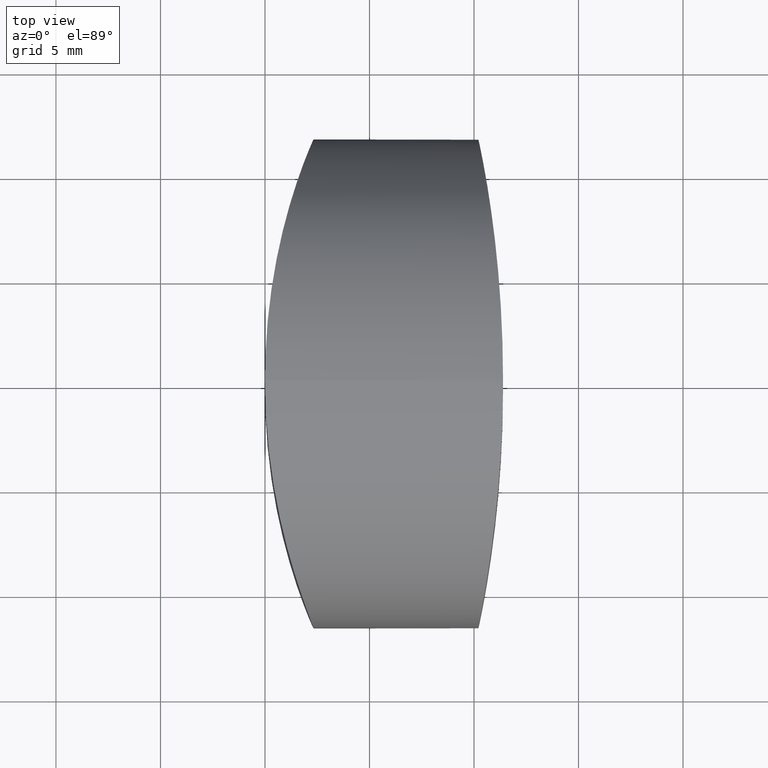
[diagram: clean part render]
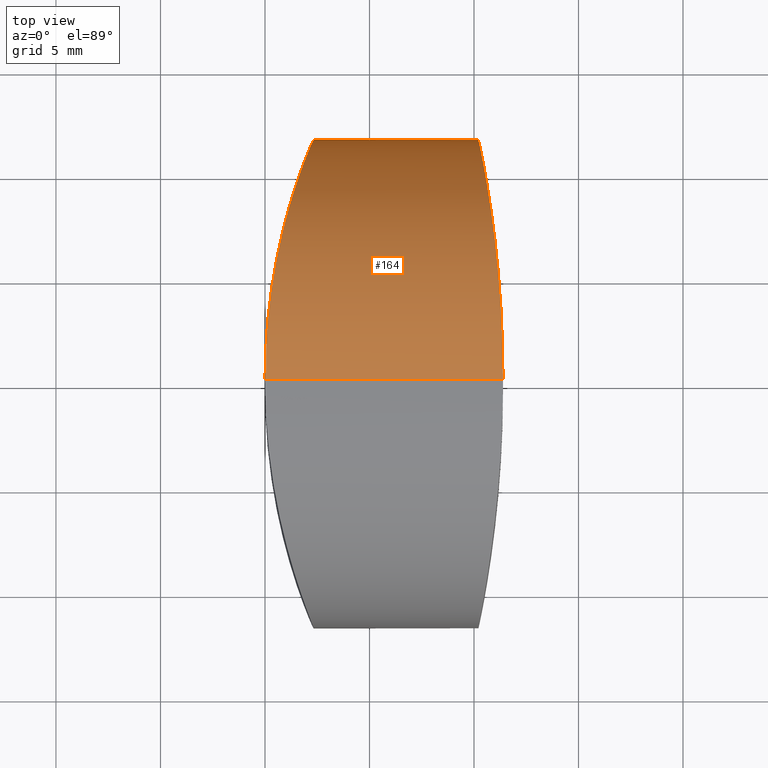
[diagram: same view with one face highlighted and labeled with its STEP entity id]
A machine part, top view. The second image highlights one B-rep face of the part: STEP entity #164.
In plain terms, the highlighted cylindrical surface (partial cylindrical patch) has radius 11.7 mm, axis along (1, -0, -0).
Its self-contained STEP definition (entity closure, byte-faithful):
#2 = CARTESIAN_POINT ( 'NONE',  ( 10.50622504491084186, 10.13271235799219383, 17.56208098822468244 ) ) ;
#4 = CARTESIAN_POINT ( 'NONE',  ( 11.38999999999997570, 0.000000000000000000, 0.000000000000000000 ) ) ;
#5 = LINE ( 'NONE', #199, #33 ) ;
#7 = CARTESIAN_POINT ( 'NONE',  ( 0.1160592993417173535, 2.687889774685310318, 23.09363538782605829 ) ) ;
#8 = CARTESIAN_POINT ( 'NONE',  ( 2.078034471810814576, 11.07726995553003846, 15.48590052942484618 ) ) ;
#9 = CARTESIAN_POINT ( 'NONE',  ( 2.328394357386717850, 11.70000183076872702, 10.91931812079859299 ) ) ;
#10 = CARTESIAN_POINT ( 'NONE',  ( 1.066338910885135549, 8.007149353136878034, 3.160791053814407281 ) ) ;
#11 = CARTESIAN_POINT ( 'NONE',  ( 2.203290676358133471, 11.39374445253838530, 9.012592271372135144 ) ) ;
#13 = VERTEX_POINT ( 'NONE', #52 ) ;
#20 = B_SPLINE_CURVE_WITH_KNOTS ( 'NONE', 3,
 ( #155, #70, #209, #321, #349, #292, #73, #125, #101, #99, #185, #290, #10, #258, #76, #153, #262, #71, #43, #130, #11, #102, #9, #259, #320, #239, #41, #8, #181, #97, #263, #40, #184, #293, #129, #210, #187, #45, #295, #156, #207, #126, #7, #316, #235, #346 ),
 .UNSPECIFIED., .F., .F.,
 ( 4, 2, 2, 2, 2, 2, 2, 2, 2, 2, 2, 2, 2, 2, 2, 2, 2, 2, 2, 2, 2, 2, 4 ),
 ( 0.01845554595554222896, 0.02076242463567595439, 0.02191586397574281711, 0.02306930331580968330, 0.02537618199594341220, 0.02652962133601027839, 0.02768306067607714110, 0.02998993935621087348, 0.03229681803634459891, 0.03345025737641146857, 0.03460369671647833129, 0.03691057539661206366, 0.03921745407674578909, 0.04037089341681265181, 0.04152433275687951453, 0.04383121143701323996, 0.04498465077708009574, 0.04613809011714696540, 0.04844496879728067695, 0.05075184747741440239, 0.05190528681748125817, 0.05305872615754811394, 0.05536560483768183938 ),
 .UNSPECIFIED. ) ;
#24 = CARTESIAN_POINT ( 'NONE',  ( 10.41154747799908442, 10.65660670264508525, 16.54475058334664439 ) ) ;
#30 = CARTESIAN_POINT ( 'NONE',  ( 10.20826313417692965, 11.70001478711865062, 12.47439305725944791 ) ) ;
#33 = VECTOR ( 'NONE', #58, 1000.000000000000000 ) ;
#34 = CARTESIAN_POINT ( 'NONE',  ( 10.33063240543324746, 11.08412693469862376, 7.934383297295575233 ) ) ;
#40 = CARTESIAN_POINT ( 'NONE',  ( 1.516286628019840599, 9.509272122827274742, 18.52705692745586674 ) ) ;
#41 = CARTESIAN_POINT ( 'NONE',  ( 2.166733974316889189, 11.30268615911433372, 14.74766108269162324 ) ) ;
#43 = CARTESIAN_POINT ( 'NONE',  ( 2.076001444509647076, 11.07204335983842469, 7.898962440661879469 ) ) ;
#45 = CARTESIAN_POINT ( 'NONE',  ( 0.5648329074340061595, 5.884546536927040883, 21.84148079144623011 ) ) ;
#49 = VERTEX_POINT ( 'NONE', #345 ) ;
#52 = CARTESIAN_POINT ( 'NONE',  ( 4.449436206481902693E-15, 0.000000000000000000, 23.39999999999999858 ) ) ;
#54 = CARTESIAN_POINT ( 'NONE',  ( 11.33005591743289564, 2.674760554514123090, 0.3033141380260955255 ) ) ;
#58 = DIRECTION ( 'NONE',  ( 1.000000000000000000, -0.000000000000000000, -0.000000000000000000 ) ) ;
#59 = ORIENTED_EDGE ( 'NONE', *, *, #347, .F. ) ;
#61 = CARTESIAN_POINT ( 'NONE',  ( 11.09899048988026138, 5.863226998365520082, 21.85359787293305445 ) ) ;
#63 = CARTESIAN_POINT ( 'NONE',  ( 11.19012191953944679, 4.845000668286446377, 1.043506332682181847 ) ) ;
#69 = CARTESIAN_POINT ( 'NONE',  ( -20.00000000000000000, 1.432836755002403087E-15, 23.39999999999999858 ) ) ;
#70 = CARTESIAN_POINT ( 'NONE',  ( 4.417700336404801841E-15, 0.7806210479886694920, 6.860966872759830774E-16 ) ) ;
#71 = CARTESIAN_POINT ( 'NONE',  ( 2.025629451502845235, 10.94202207652923065, 7.539868181206229814 ) ) ;
#73 = CARTESIAN_POINT ( 'NONE',  ( 0.2812710128058751868, 4.152085810238018482, 0.7548277570260555347 ) ) ;
#74 = VERTEX_POINT ( 'NONE', #238 ) ;
#76 = CARTESIAN_POINT ( 'NONE',  ( 1.442864378714249662, 9.290234166731412557, 4.546816445511939087 ) ) ;
#81 = VERTEX_POINT ( 'NONE', #322 ) ;
#87 = CARTESIAN_POINT ( 'NONE',  ( 11.26871136814262897, 3.783274938317503722, 0.6219328713066870629 ) ) ;
#90 = CARTESIAN_POINT ( 'NONE',  ( 11.24508527239767552, 4.130721833659423581, 22.65325982927251758 ) ) ;
#93 = CARTESIAN_POINT ( 'NONE',  ( 11.24426429742982414, 4.142101250212122387, 0.7511239850717073008 ) ) ;
#94 = CARTESIAN_POINT ( 'NONE',  ( 11.31265727765713258, 3.029920609330154502, 23.00740200318163531 ) ) ;
#97 = CARTESIAN_POINT ( 'NONE',  ( 1.860240585151857529, 10.50411711786879643, 16.90948171108354003 ) ) ;
#98 = FACE_OUTER_BOUND ( 'NONE', #337, .T. ) ;
#99 = CARTESIAN_POINT ( 'NONE',  ( 0.7714318575839039793, 6.830793372892826731, 2.193400979886657609 ) ) ;
#101 = CARTESIAN_POINT ( 'NONE',  ( 0.5642812167702144777, 5.881341257867254591, 1.556998612934402670 ) ) ;
#102 = CARTESIAN_POINT ( 'NONE',  ( 2.295980021981688601, 11.62264513539192379, 10.15002843403417643 ) ) ;
#119 = CARTESIAN_POINT ( 'NONE',  ( 10.44163273695993155, 10.49343172236137711, 16.88880949066864900 ) ) ;
#121 = CARTESIAN_POINT ( 'NONE',  ( 10.72483795033419263, 8.800887155657942884, 3.981072479258528141 ) ) ;
#123 = CARTESIAN_POINT ( 'NONE',  ( 11.38999999999997570, 0.7746313484711082609, 23.40000000000000568 ) ) ;
#125 = CARTESIAN_POINT ( 'NONE',  ( 0.4392901819277098552, 5.212199408848721127, 1.197170603204780859 ) ) ;
#126 = CARTESIAN_POINT ( 'NONE',  ( 0.1519448747251913590, 3.066111599807184174, 22.99766614368142825 ) ) ;
#127 = DIRECTION ( 'NONE',  ( 1.000000000000000000, -0.000000000000000000, -0.000000000000000000 ) ) ;
#128 = EDGE_CURVE ( 'NONE', #13, #49, #152, .T. ) ;
#129 = CARTESIAN_POINT ( 'NONE',  ( 1.217104182235110077, 8.543119532902675672, 19.70297447105220101 ) ) ;
#130 = CARTESIAN_POINT ( 'NONE',  ( 2.164805525034419809, 11.29784265248028952, 8.634582884917881174 ) ) ;
#131 = EDGE_CURVE ( 'NONE', #81, #13, #20, .T. ) ;
#138 = ORIENTED_EDGE ( 'NONE', *, *, #310, .T. ) ;
#140 = CARTESIAN_POINT ( 'NONE',  ( 10.35662576223146658, 10.94895943076386224, 15.84187904376562628 ) ) ;
#143 = CARTESIAN_POINT ( 'NONE',  ( 10.95527449060790559, 7.125458816484925961, 20.98791256695286833 ) ) ;
#145 = CARTESIAN_POINT ( 'NONE',  ( 11.06219887657188394, 6.193143383978466865, 1.766086580009278206 ) ) ;
#148 = CARTESIAN_POINT ( 'NONE',  ( 10.76337661992677930, 8.544504710775850498, 3.698370426306029746 ) ) ;
#149 = CARTESIAN_POINT ( 'NONE',  ( 10.54091271044904410, 9.934096969455678661, 17.89284770894479948 ) ) ;
#152 = LINE ( 'NONE', #69, #278 ) ;
#153 = CARTESIAN_POINT ( 'NONE',  ( 1.728983089996642297, 10.14339694560711180, 5.818844990926485217 ) ) ;
#155 = CARTESIAN_POINT ( 'NONE',  ( 4.422331152220252180E-15, 0.000000000000000000, 6.814343606956653858E-16 ) ) ;
#156 = CARTESIAN_POINT ( 'NONE',  ( 0.2826352430045864228, 4.161830498442306236, 22.64139019101346406 ) ) ;
#162 = B_SPLINE_CURVE_WITH_KNOTS ( 'NONE', 3,
 ( #178, #123, #251, #204, #94, #314, #90, #307, #61, #284, #143, #254, #203, #366, #250, #149, #2, #119, #24, #140, #311, #343, #247, #363, #30, #288, #225, #279, #226, #34, #201, #205, #313, #339, #340, #121, #148, #174, #229, #145, #342, #253, #63, #93, #87, #177, #54, #169, #287, #4 ),
 .UNSPECIFIED., .F., .F.,
 ( 4, 2, 2, 2, 2, 2, 2, 2, 2, 2, 2, 2, 2, 2, 2, 2, 2, 2, 2, 2, 2, 2, 2, 2, 4 ),
 ( 0.03664757168066259257, 0.03893814959777788798, 0.04008343855633553915, 0.04122872751489319032, 0.04351930543200848572, 0.04466459439056613689, 0.04580988334912378807, 0.04810046126623908347, 0.04924575022479672770, 0.05039103918335436499, 0.05153632814191200229, 0.05268161710046964652, 0.05497219501758492111, 0.05726277293470020957, 0.05840806189325785380, 0.05955335085181549803, 0.06184392876893078650, 0.06298921772748843073, 0.06413450668604607496, 0.06642508460316137731, 0.06757037356171902154, 0.06871566252027666577, 0.06986095147883431000, 0.07100624043739196811, 0.07329681835450725658 ),
 .UNSPECIFIED. ) ;
#164 = ADVANCED_FACE ( 'NONE', ( #98 ), #208, .T. ) ;
#169 = CARTESIAN_POINT ( 'NONE',  ( 11.37462737317585848, 1.540062197894479734, 0.07617192708792978884 ) ) ;
#174 = CARTESIAN_POINT ( 'NONE',  ( 10.87860890339282527, 7.737988367677893997, 2.891363194567481365 ) ) ;
#177 = CARTESIAN_POINT ( 'NONE',  ( 11.31157528992186734, 3.050539891455560149, 0.3981883338389094473 ) ) ;
#178 = CARTESIAN_POINT ( 'NONE',  ( 11.38999999999997570, 1.432836755002403087E-15, 23.39999999999999858 ) ) ;
#180 = ORIENTED_EDGE ( 'NONE', *, *, #128, .T. ) ;
#181 = CARTESIAN_POINT ( 'NONE',  ( 2.027068254884936582, 10.94578333207002885, 15.85043627566819247 ) ) ;
#184 = CARTESIAN_POINT ( 'NONE',  ( 1.441988513520974013, 9.280024394102660779, 18.83552002652420398 ) ) ;
#185 = CARTESIAN_POINT ( 'NONE',  ( 0.8441105892491637119, 7.139416111588988478, 2.422959731452064780 ) ) ;
#187 = CARTESIAN_POINT ( 'NONE',  ( 0.8428319114542061063, 7.157363875990199631, 20.98706966352700931 ) ) ;
#190 = DIRECTION ( 'NONE',  ( 0.000000000000000000, 0.000000000000000000, -1.000000000000000000 ) ) ;
#199 = CARTESIAN_POINT ( 'NONE',  ( -20.00000000000000000, 0.000000000000000000, 0.000000000000000000 ) ) ;
#201 = CARTESIAN_POINT ( 'NONE',  ( 10.35580859865191172, 10.95325725530211436, 7.569274918716888401 ) ) ;
#203 = CARTESIAN_POINT ( 'NONE',  ( 10.84087912694287681, 8.001901616259747385, 20.24425060675728716 ) ) ;
#204 = CARTESIAN_POINT ( 'NONE',  ( 11.33075744563290677, 2.658827774625768026, 23.10027566085063100 ) ) ;
#205 = CARTESIAN_POINT ( 'NONE',  ( 10.43858503350812050, 10.51278570214456742, 6.507864257103472383 ) ) ;
#207 = CARTESIAN_POINT ( 'NONE',  ( 0.2352123016510342390, 3.802381871181136574, 22.77159395671060338 ) ) ;
#208 = CYLINDRICAL_SURFACE ( 'NONE', #318, 11.69999999999999929 ) ;
#209 = CARTESIAN_POINT ( 'NONE',  ( 0.02984197849129087074, 1.546796674678222239, 0.07732926770461821808 ) ) ;
#210 = CARTESIAN_POINT ( 'NONE',  ( 0.9919089095240174458, 7.742667148210983896, 20.50403727747220017 ) ) ;
#225 = CARTESIAN_POINT ( 'NONE',  ( 10.22396500224738425, 11.62380655775104543, 10.16388170326317031 ) ) ;
#226 = CARTESIAN_POINT ( 'NONE',  ( 10.28710985209050399, 11.30737688939135488, 8.669988954235254397 ) ) ;
#229 = CARTESIAN_POINT ( 'NONE',  ( 10.95493535362735749, 7.150856453735316975, 2.407750798669677117 ) ) ;
#235 = CARTESIAN_POINT ( 'NONE',  ( 4.457934401399381107E-15, 0.7806417526919147143, 23.39999999999999503 ) ) ;
#238 = CARTESIAN_POINT ( 'NONE',  ( 11.38999999999997570, 0.000000000000000000, 0.000000000000000000 ) ) ;
#239 = CARTESIAN_POINT ( 'NONE',  ( 2.204419961356620661, 11.39654741355011325, 14.37503966281609280 ) ) ;
#247 = CARTESIAN_POINT ( 'NONE',  ( 10.26937765810495584, 11.39672729195003065, 14.37458426936698075 ) ) ;
#250 = CARTESIAN_POINT ( 'NONE',  ( 10.64900343733909693, 9.292496470755340354, 18.85053079987245894 ) ) ;
#251 = CARTESIAN_POINT ( 'NONE',  ( 11.37463419604563875, 1.535940976776948075, 23.32383269106519208 ) ) ;
#253 = CARTESIAN_POINT ( 'NONE',  ( 11.16042525787660367, 5.189073437424384316, 1.206698118324713409 ) ) ;
#254 = CARTESIAN_POINT ( 'NONE',  ( 10.87934292869398689, 7.719189746639963268, 20.50065866013176219 ) ) ;
#258 = CARTESIAN_POINT ( 'NONE',  ( 1.291559829788990088, 8.807925454658070308, 3.961746324563140575 ) ) ;
#259 = CARTESIAN_POINT ( 'NONE',  ( 2.328392839912307277, 11.69999816916699231, 12.48073675332599208 ) ) ;
#260 = DIRECTION ( 'NONE',  ( 1.000000000000000000, -0.000000000000000000, -0.000000000000000000 ) ) ;
#262 = CARTESIAN_POINT ( 'NONE',  ( 1.859582251047582124, 10.50227689238845841, 6.487480880843012443 ) ) ;
#263 = CARTESIAN_POINT ( 'NONE',  ( 1.729552520797172255, 10.14488388833526678, 17.57802528737399328 ) ) ;
#272 = ORIENTED_EDGE ( 'NONE', *, *, #131, .T. ) ;
#278 = VECTOR ( 'NONE', #127, 1000.000000000000000 ) ;
#279 = CARTESIAN_POINT ( 'NONE',  ( 10.26867669605029576, 11.40024834571417145, 9.041058061100665455 ) ) ;
#284 = CARTESIAN_POINT ( 'NONE',  ( 10.99255650299376974, 6.815638107333524154, 21.21750084527242208 ) ) ;
#287 = CARTESIAN_POINT ( 'NONE',  ( 11.38999999999997748, 0.7746667533333652100, 2.710505431213756648E-16 ) ) ;
#288 = CARTESIAN_POINT ( 'NONE',  ( 10.20826917078851181, 11.69998520861648394, 10.92516018166186953 ) ) ;
#290 = CARTESIAN_POINT ( 'NONE',  ( 0.9914594080757297423, 7.727014504329392963, 2.906366768589928817 ) ) ;
#292 = CARTESIAN_POINT ( 'NONE',  ( 0.2332900811433148980, 3.787138427154589149, 0.6231442155282722606 ) ) ;
#293 = CARTESIAN_POINT ( 'NONE',  ( 1.292521250165311830, 8.797279881295125392, 19.42284698114809771 ) ) ;
#295 = CARTESIAN_POINT ( 'NONE',  ( 0.4399254050545680084, 5.215256973397713658, 22.20097635177353723 ) ) ;
#307 = CARTESIAN_POINT ( 'NONE',  ( 11.16348420032047883, 5.192238087404311919, 22.21274077784721612 ) ) ;
#310 = EDGE_CURVE ( 'NONE', #49, #74, #162, .T. ) ;
#311 = CARTESIAN_POINT ( 'NONE',  ( 10.33178806972052932, 11.07813773534511981, 15.48306674270586214 ) ) ;
#313 = CARTESIAN_POINT ( 'NONE',  ( 10.50384607542333271, 10.15368759170652702, 5.836935252251745254 ) ) ;
#314 = CARTESIAN_POINT ( 'NONE',  ( 11.26986456937244796, 3.765577113448186797, 22.78414128216862977 ) ) ;
#316 = CARTESIAN_POINT ( 'NONE',  ( 0.02985707909308727911, 1.550058235428850795, 23.32265179006493838 ) ) ;
#317 = CARTESIAN_POINT ( 'NONE',  ( -20.00000000000000000, 0.000000000000000000, 11.69999999999999929 ) ) ;
#318 = AXIS2_PLACEMENT_3D ( 'NONE', #317, #260, #190 ) ;
#320 = CARTESIAN_POINT ( 'NONE',  ( 2.295995484031971845, 11.62265450876716777, 13.24674586069400561 ) ) ;
#321 = CARTESIAN_POINT ( 'NONE',  ( 0.1150139752535925264, 2.675594914363489174, 0.3035770708406042018 ) ) ;
#322 = CARTESIAN_POINT ( 'NONE',  ( 4.422331152220252180E-15, 0.000000000000000000, 6.814343606956653858E-16 ) ) ;
#337 = EDGE_LOOP ( 'NONE', ( #272, #180, #138, #59 ) ) ;
#339 = CARTESIAN_POINT ( 'NONE',  ( 10.61110592407069753, 9.517653904310712676, 4.884577111849557340 ) ) ;
#340 = CARTESIAN_POINT ( 'NONE',  ( 10.64861114196134295, 9.288081554115874994, 4.574763313322320002 ) ) ;
#342 = CARTESIAN_POINT ( 'NONE',  ( 11.09655340141737057, 5.862368244817431240, 1.567453129587329963 ) ) ;
#343 = CARTESIAN_POINT ( 'NONE',  ( 10.28819648789328056, 11.30186109005047612, 14.75035498987376492 ) ) ;
#345 = CARTESIAN_POINT ( 'NONE',  ( 11.38999999999997570, 1.432836755002403087E-15, 23.39999999999999858 ) ) ;
#346 = CARTESIAN_POINT ( 'NONE',  ( 4.449436206481902693E-15, 0.000000000000000000, 23.39999999999999858 ) ) ;
#347 = EDGE_CURVE ( 'NONE', #81, #74, #5, .T. ) ;
#349 = CARTESIAN_POINT ( 'NONE',  ( 0.1501520807389055967, 3.048426068698907088, 0.3975113342196781030 ) ) ;
#363 = CARTESIAN_POINT ( 'NONE',  ( 10.22396210654188131, 11.62385279200474919, 13.23987733079601803 ) ) ;
#366 = CARTESIAN_POINT ( 'NONE',  ( 10.72564368245376265, 8.808913754835982601, 19.43767601346501905 ) ) ;